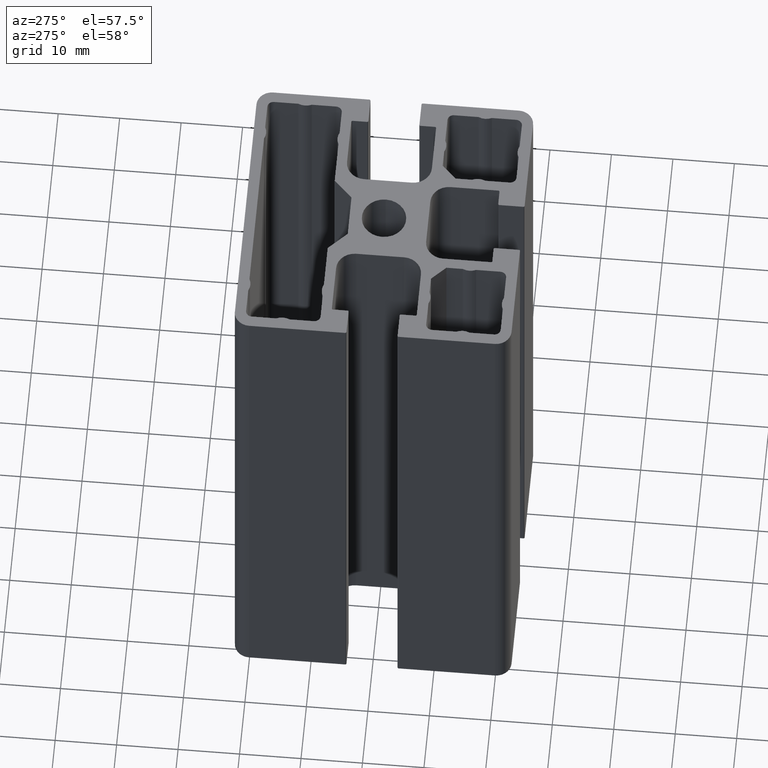
[diagram: clean part render]
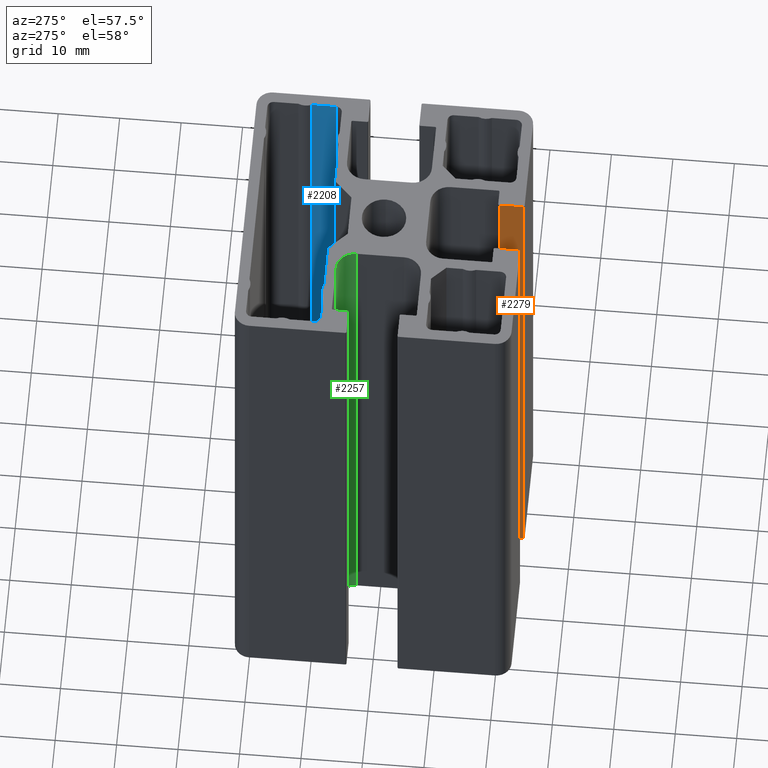
[diagram: same view with three faces highlighted in distinct colors, each labeled with its STEP entity id]
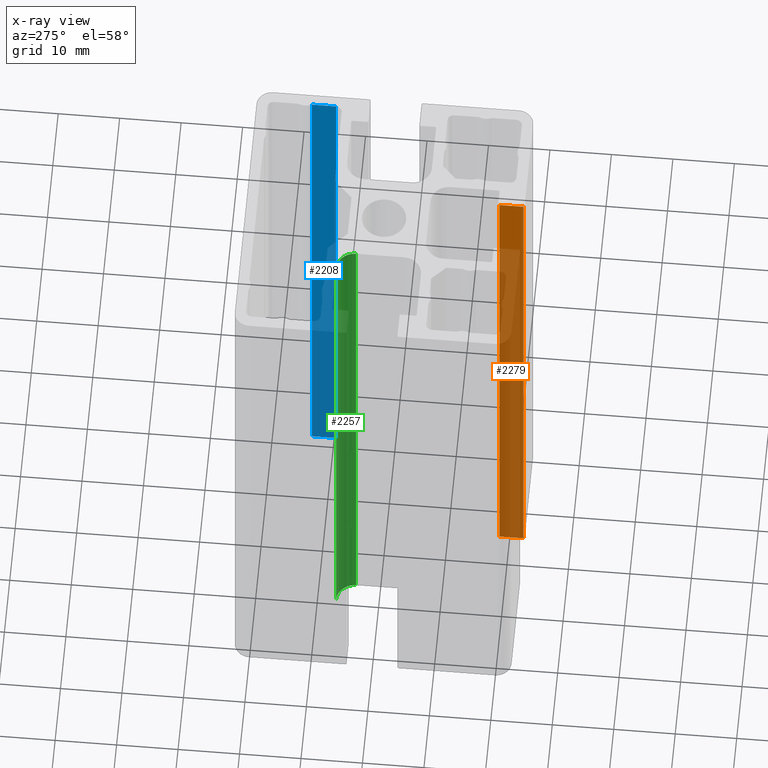
[diagram: x-ray of the same camera — body ghosted, the three highlighted faces saturated]
A machine part, auxiliary view with three faces highlighted in distinct colors.
The next image is the same camera in x-ray (body ghosted, the three faces saturated) — at least one of them is partly hidden behind the body in this view.
Their STEP definitions:

[orange] entity #2279 — the highlighted planar face has unit normal (1, 0, 0).
#274=FACE_OUTER_BOUND('',#389,.T.);
#389=EDGE_LOOP('',(#1814,#1815,#1816,#1817));
#611=LINE('',#3757,#843);
#612=LINE('',#3760,#844);
#613=LINE('',#3762,#845);
#614=LINE('',#3763,#846);
#843=VECTOR('',#3071,100.);
#844=VECTOR('',#3074,3.90000000000001);
#845=VECTOR('',#3075,3.90000000000001);
#846=VECTOR('',#3076,100.);
#1072=VERTEX_POINT('',#3753);
#1073=VERTEX_POINT('',#3755);
#1074=VERTEX_POINT('',#3759);
#1075=VERTEX_POINT('',#3761);
#1387=EDGE_CURVE('',#1073,#1072,#611,.T.);
#1388=EDGE_CURVE('',#1072,#1074,#612,.T.);
#1389=EDGE_CURVE('',#1075,#1073,#613,.T.);
#1390=EDGE_CURVE('',#1075,#1074,#614,.T.);
#1814=ORIENTED_EDGE('',*,*,#1388,.F.);
#1815=ORIENTED_EDGE('',*,*,#1387,.F.);
#1816=ORIENTED_EDGE('',*,*,#1389,.F.);
#1817=ORIENTED_EDGE('',*,*,#1390,.T.);
#2174=PLANE('',#2482);
#2279=ADVANCED_FACE('',(#274),#2174,.F.);
#2482=AXIS2_PLACEMENT_3D('',#3758,#3072,#3073);
#3071=DIRECTION('',(0.,0.,1.));
#3072=DIRECTION('center_axis',(1.,0.,0.));
#3073=DIRECTION('ref_axis',(0.,1.,0.));
#3074=DIRECTION('',(0.,-1.,0.));
#3075=DIRECTION('',(0.,1.,0.));
#3076=DIRECTION('',(0.,0.,1.));
#3753=CARTESIAN_POINT('',(4.15,-18.4,100.));
#3755=CARTESIAN_POINT('',(4.15,-18.4,0.));
#3757=CARTESIAN_POINT('',(4.15,-18.4,0.));
#3758=CARTESIAN_POINT('Origin',(4.15,-22.3,0.));
#3759=CARTESIAN_POINT('',(4.15,-22.3,100.));
#3760=CARTESIAN_POINT('',(4.15,-11.15,100.));
#3761=CARTESIAN_POINT('',(4.15,-22.3,0.));
#3762=CARTESIAN_POINT('',(4.15,-11.15,0.));
#3763=CARTESIAN_POINT('',(4.15,-22.3,0.));

[blue] entity #2208 — the highlighted planar face has unit normal (1, -0, 0).
#203=FACE_OUTER_BOUND('',#318,.T.);
#318=EDGE_LOOP('',(#1530,#1531,#1532,#1533));
#464=LINE('',#3325,#696);
#465=LINE('',#3328,#697);
#466=LINE('',#3330,#698);
#467=LINE('',#3331,#699);
#696=VECTOR('',#2646,100.);
#697=VECTOR('',#2649,3.96027526411483);
#698=VECTOR('',#2650,3.96027526411483);
#699=VECTOR('',#2651,100.);
#926=VERTEX_POINT('',#3321);
#927=VERTEX_POINT('',#3323);
#928=VERTEX_POINT('',#3327);
#929=VERTEX_POINT('',#3329);
#1172=EDGE_CURVE('',#927,#926,#464,.T.);
#1173=EDGE_CURVE('',#926,#928,#465,.T.);
#1174=EDGE_CURVE('',#929,#927,#466,.T.);
#1175=EDGE_CURVE('',#929,#928,#467,.T.);
#1530=ORIENTED_EDGE('',*,*,#1173,.F.);
#1531=ORIENTED_EDGE('',*,*,#1172,.F.);
#1532=ORIENTED_EDGE('',*,*,#1174,.F.);
#1533=ORIENTED_EDGE('',*,*,#1175,.T.);
#2137=PLANE('',#2343);
#2208=ADVANCED_FACE('',(#203),#2137,.F.);
#2343=AXIS2_PLACEMENT_3D('',#3326,#2647,#2648);
#2646=DIRECTION('',(0.,0.,1.));
#2647=DIRECTION('center_axis',(1.,-1.12135945163731E-15,0.));
#2648=DIRECTION('ref_axis',(1.06581410364015E-15,1.,0.));
#2649=DIRECTION('',(-1.12135945163731E-15,-1.,0.));
#2650=DIRECTION('',(1.12135945163731E-15,1.,0.));
#2651=DIRECTION('',(0.,0.,1.));
#3321=CARTESIAN_POINT('',(20.7,13.5602752641148,100.));
#3323=CARTESIAN_POINT('',(20.7,13.5602752641148,0.));
#3325=CARTESIAN_POINT('',(20.7,13.5602752641148,0.));
#3326=CARTESIAN_POINT('Origin',(20.7,9.6,0.));
#3327=CARTESIAN_POINT('',(20.7,9.6,100.));
#3328=CARTESIAN_POINT('',(20.7,4.79999999999999,100.));
#3329=CARTESIAN_POINT('',(20.7,9.6,0.));
#3330=CARTESIAN_POINT('',(20.7,4.79999999999999,0.));
#3331=CARTESIAN_POINT('',(20.7,9.6,0.));

[green] entity #2257 — the highlighted cylindrical surface (edge-blend (fillet) strip) has radius 3 mm, axis along (0, 0, 1).
#86=CIRCLE('',#2437,3.);
#87=CIRCLE('',#2438,3.);
#161=CYLINDRICAL_SURFACE('',#2436,3.);
#252=FACE_OUTER_BOUND('',#367,.T.);
#367=EDGE_LOOP('',(#1726,#1727,#1728,#1729));
#568=LINE('',#3622,#800);
#569=LINE('',#3628,#801);
#800=VECTOR('',#2936,100.);
#801=VECTOR('',#2943,100.);
#1026=VERTEX_POINT('',#3618);
#1027=VERTEX_POINT('',#3620);
#1028=VERTEX_POINT('',#3624);
#1029=VERTEX_POINT('',#3626);
#1320=EDGE_CURVE('',#1027,#1026,#568,.T.);
#1321=EDGE_CURVE('',#1026,#1028,#86,.T.);
#1322=EDGE_CURVE('',#1029,#1027,#87,.T.);
#1323=EDGE_CURVE('',#1029,#1028,#569,.T.);
#1726=ORIENTED_EDGE('',*,*,#1321,.F.);
#1727=ORIENTED_EDGE('',*,*,#1320,.F.);
#1728=ORIENTED_EDGE('',*,*,#1322,.F.);
#1729=ORIENTED_EDGE('',*,*,#1323,.T.);
#2257=ADVANCED_FACE('',(#252),#161,.F.);
#2436=AXIS2_PLACEMENT_3D('',#3623,#2937,#2938);
#2437=AXIS2_PLACEMENT_3D('',#3625,#2939,#2940);
#2438=AXIS2_PLACEMENT_3D('',#3627,#2941,#2942);
#2936=DIRECTION('',(0.,0.,1.));
#2937=DIRECTION('center_axis',(0.,0.,1.));
#2938=DIRECTION('ref_axis',(1.,0.,0.));
#2939=DIRECTION('center_axis',(0.,0.,-1.));
#2940=DIRECTION('ref_axis',(1.,0.,0.));
#2941=DIRECTION('center_axis',(0.,0.,1.));
#2942=DIRECTION('ref_axis',(1.,0.,0.));
#2943=DIRECTION('',(0.,0.,1.));
#3618=CARTESIAN_POINT('',(-10.2,6.9,100.));
#3620=CARTESIAN_POINT('',(-10.2,6.9,0.));
#3622=CARTESIAN_POINT('',(-10.2,6.9,0.));
#3623=CARTESIAN_POINT('Origin',(-10.2,3.9,0.));
#3624=CARTESIAN_POINT('',(-7.2,3.9,100.));
#3625=CARTESIAN_POINT('Origin',(-10.2,3.9,100.));
#3626=CARTESIAN_POINT('',(-7.2,3.9,0.));
#3627=CARTESIAN_POINT('Origin',(-10.2,3.9,0.));
#3628=CARTESIAN_POINT('',(-7.2,3.9,0.));